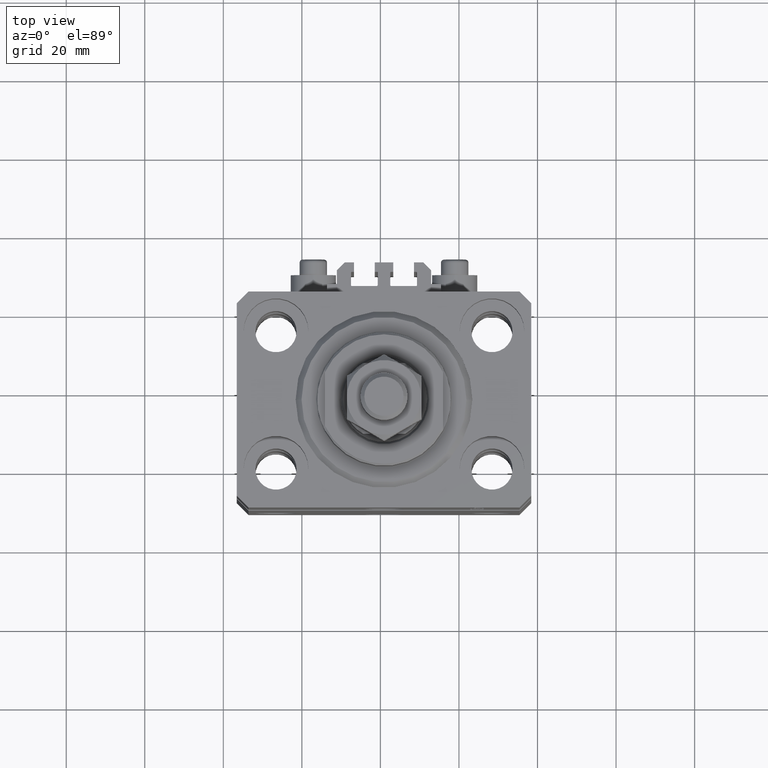
[diagram: clean part render]
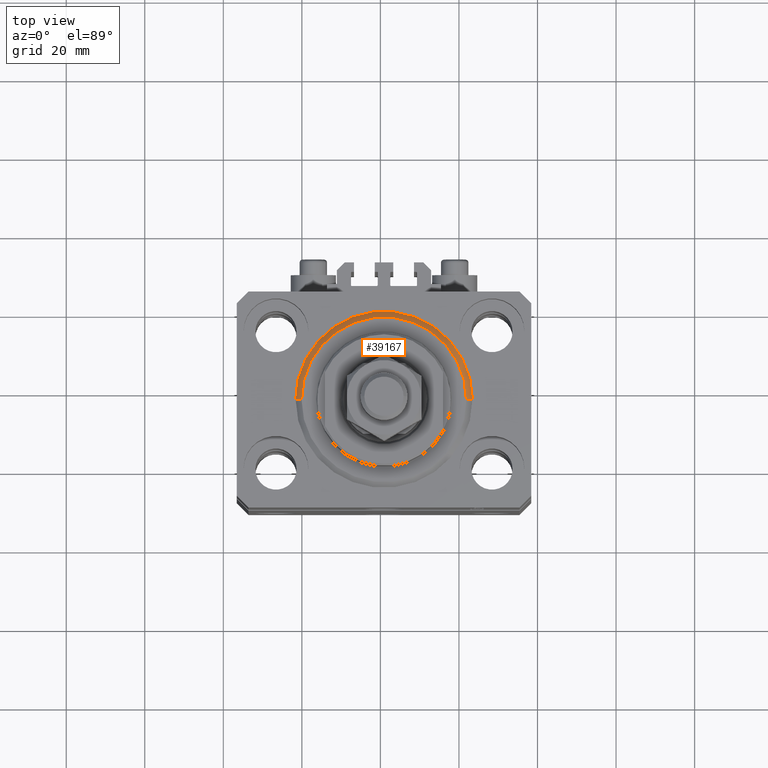
[diagram: same view with one face highlighted and labeled with its STEP entity id]
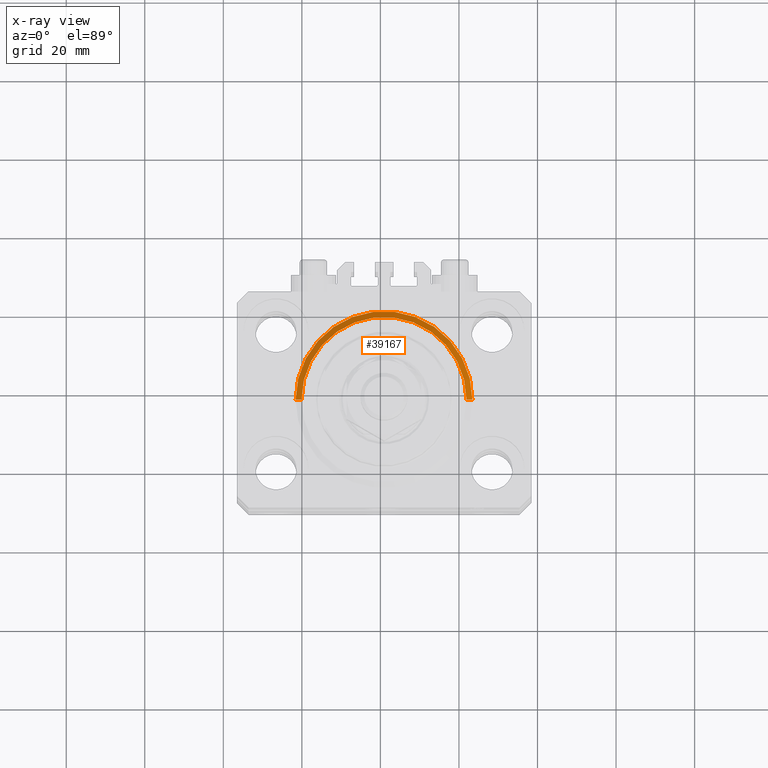
[diagram: x-ray of the same camera — body ghosted, the highlighted face saturated]
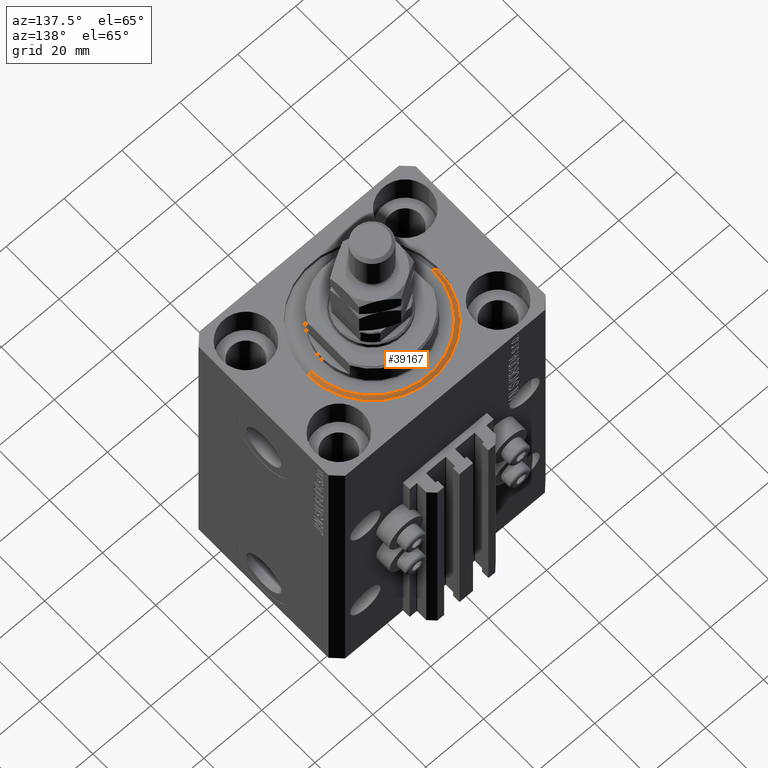
[diagram: same view with one face highlighted and labeled with its STEP entity id]
A machine part, top view. The second image highlights one B-rep face of the part: STEP entity #39167.
The next image is the same camera in x-ray: the body ghosted, the highlighted face saturated — about 0% of this face is hidden behind the body in this view.
A second angle (auxiliary view) of the same face is appended — the face is thin or edge-on in the first view.
In plain terms, the highlighted conical surface has half-angle 45 deg.
Its self-contained STEP definition (entity closure, byte-faithful):
#1519 = AXIS2_PLACEMENT_3D ( 'NONE', #45121, #29523, #44624 ) ;
#2092 = VERTEX_POINT ( 'NONE', #47404 ) ;
#2530 = VERTEX_POINT ( 'NONE', #7229 ) ;
#2575 = ORIENTED_EDGE ( 'NONE', *, *, #31584, .F. ) ;
#2786 = CARTESIAN_POINT ( 'NONE',  ( -22.50000000000000355, 2.755455298081545172E-15, 1.500000000000001332 ) ) ;
#3780 = CIRCLE ( 'NONE', #26689, 22.50000000000000355 ) ;
#7229 = CARTESIAN_POINT ( 'NONE',  ( -22.50000000000000355, 0.000000000000000000, 1.500000000000001332 ) ) ;
#8908 = EDGE_LOOP ( 'NONE', ( #14907, #11553, #30395, #2575 ) ) ;
#11553 = ORIENTED_EDGE ( 'NONE', *, *, #18131, .T. ) ;
#13590 = CARTESIAN_POINT ( 'NONE',  ( 0.000000000000000000, 0.000000000000000000, 1.500000000000001332 ) ) ;
#14907 = ORIENTED_EDGE ( 'NONE', *, *, #39454, .F. ) ;
#16542 = CONICAL_SURFACE ( 'NONE', #33933, 22.50000000000000355, 0.7853981633974517207 ) ;
#18131 = EDGE_CURVE ( 'NONE', #47783, #2530, #24580, .T. ) ;
#20125 = CARTESIAN_POINT ( 'NONE',  ( -20.99999999999998934, 2.663606788145492628E-15, 0.000000000000000000 ) ) ;
#21218 = VERTEX_POINT ( 'NONE', #32495 ) ;
#21955 = DIRECTION ( 'NONE',  ( 1.000000000000000000, 0.000000000000000000, 0.000000000000000000 ) ) ;
#22849 = DIRECTION ( 'NONE',  ( 0.7071067811865500152, 0.000000000000000000, 0.7071067811865451302 ) ) ;
#23920 = VECTOR ( 'NONE', #36471, 1000.000000000000114 ) ;
#24580 = LINE ( 'NONE', #2786, #23920 ) ;
#26552 = LINE ( 'NONE', #37471, #26671 ) ;
#26671 = VECTOR ( 'NONE', #22849, 1000.000000000000114 ) ;
#26689 = AXIS2_PLACEMENT_3D ( 'NONE', #33584, #47692, #21955 ) ;
#28908 = DIRECTION ( 'NONE',  ( 1.000000000000000000, 0.000000000000000000, 0.000000000000000000 ) ) ;
#29523 = DIRECTION ( 'NONE',  ( -0.000000000000000000, -0.000000000000000000, -1.000000000000000000 ) ) ;
#30093 = DIRECTION ( 'NONE',  ( -0.000000000000000000, -0.000000000000000000, 1.000000000000000000 ) ) ;
#30395 = ORIENTED_EDGE ( 'NONE', *, *, #43155, .F. ) ;
#31584 = EDGE_CURVE ( 'NONE', #2092, #21218, #26552, .T. ) ;
#32495 = CARTESIAN_POINT ( 'NONE',  ( 22.50000000000000355, 2.755455298081545172E-15, 1.500000000000001332 ) ) ;
#33584 = CARTESIAN_POINT ( 'NONE',  ( 0.000000000000000000, 0.000000000000000000, 1.500000000000001332 ) ) ;
#33933 = AXIS2_PLACEMENT_3D ( 'NONE', #13590, #30093, #28908 ) ;
#36471 = DIRECTION ( 'NONE',  ( -0.7071067811865500152, 8.659560562354963673E-17, 0.7071067811865451302 ) ) ;
#37471 = CARTESIAN_POINT ( 'NONE',  ( 22.50000000000000355, 0.000000000000000000, 1.500000000000001332 ) ) ;
#39167 = ADVANCED_FACE ( 'NONE', ( #47972 ), #16542, .T. ) ;
#39454 = EDGE_CURVE ( 'NONE', #47783, #2092, #46574, .T. ) ;
#43155 = EDGE_CURVE ( 'NONE', #21218, #2530, #3780, .T. ) ;
#44624 = DIRECTION ( 'NONE',  ( 1.000000000000000000, 0.000000000000000000, 0.000000000000000000 ) ) ;
#45121 = CARTESIAN_POINT ( 'NONE',  ( 0.000000000000000000, 0.000000000000000000, 0.000000000000000000 ) ) ;
#46574 = CIRCLE ( 'NONE', #1519, 20.99999999999998934 ) ;
#47404 = CARTESIAN_POINT ( 'NONE',  ( 20.99999999999998934, 0.000000000000000000, 0.000000000000000000 ) ) ;
#47692 = DIRECTION ( 'NONE',  ( -0.000000000000000000, -0.000000000000000000, 1.000000000000000000 ) ) ;
#47783 = VERTEX_POINT ( 'NONE', #20125 ) ;
#47972 = FACE_OUTER_BOUND ( 'NONE', #8908, .T. ) ;